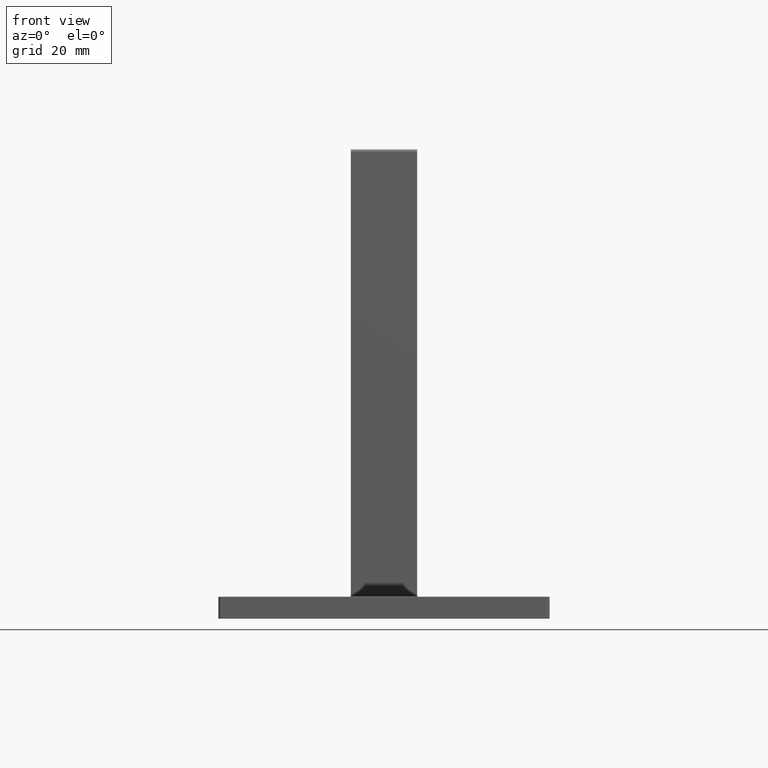
[diagram: clean part render]
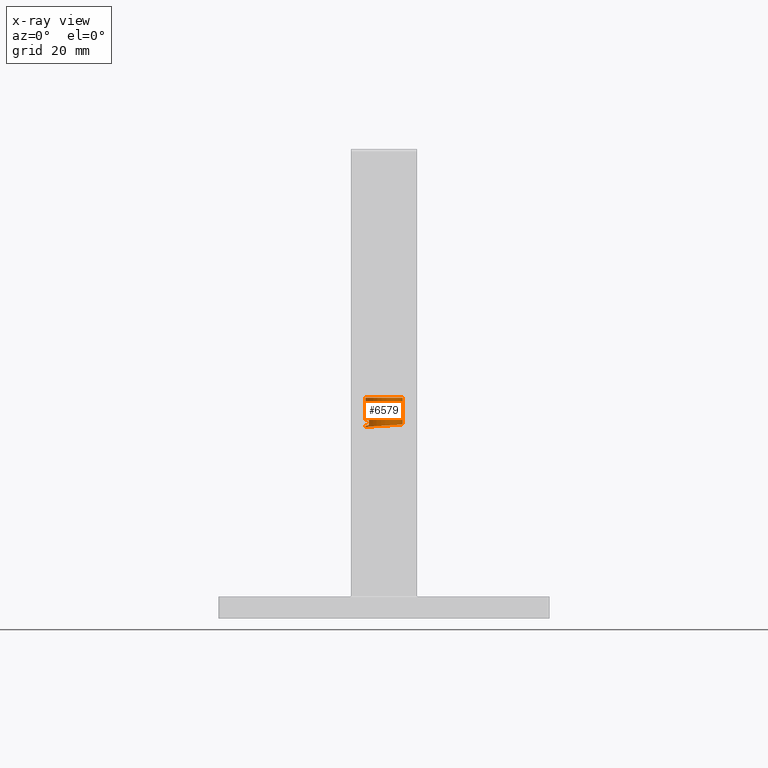
[diagram: x-ray — body ghosted, one internal face saturated and labeled with its STEP entity id]
A machine part, front view, then the same camera in x-ray: the body is ghosted and one INTERNAL B-rep face — a face not visible from any outside direction — is saturated and labeled: STEP entity #6579.
In plain terms, the highlighted cylindrical surface (edge-blend (fillet) strip) has radius 3.4 mm, axis along (-0, -0, -1).
Its self-contained STEP definition (entity closure, byte-faithful):
#4 = CARTESIAN_POINT ( 'NONE',  ( -3.399999999999991029, -1.455677376103873752E-12, 34.87500000000008527 ) ) ;
#101 = CARTESIAN_POINT ( 'NONE',  ( -3.330509360985941303, -0.7066616745555754919, 34.91579785932294300 ) ) ;
#214 = CARTESIAN_POINT ( 'NONE',  ( -3.399999999999991029, 4.163799117100990205E-16, 34.61804246300615517 ) ) ;
#374 = EDGE_CURVE ( 'NONE', #8273, #3691, #9939, .T. ) ;
#423 = VERTEX_POINT ( 'NONE', #5881 ) ;
#516 = ORIENTED_EDGE ( 'NONE', *, *, #3046, .T. ) ;
#715 = LINE ( 'NONE', #3040, #2293 ) ;
#773 = CARTESIAN_POINT ( 'NONE',  ( -3.399999999999991029, 4.163799117100990205E-16, 34.61804246300615517 ) ) ;
#840 = EDGE_CURVE ( 'NONE', #7944, #3091, #6462, .T. ) ;
#851 = CARTESIAN_POINT ( 'NONE',  ( -2.962326722042654126, -1.707130501633835173, 34.97975964176876573 ) ) ;
#965 = EDGE_CURVE ( 'NONE', #9539, #2554, #6467, .T. ) ;
#1092 = ORIENTED_EDGE ( 'NONE', *, *, #3662, .F. ) ;
#1162 = VERTEX_POINT ( 'NONE', #8162 ) ;
#1274 = AXIS2_PLACEMENT_3D ( 'NONE', #8583, #2276, #1588 ) ;
#1509 = DIRECTION ( 'NONE',  ( -0.000000000000000000, -0.000000000000000000, -1.000000000000000000 ) ) ;
#1588 = DIRECTION ( 'NONE',  ( -1.000000000000000000, 0.000000000000000000, 0.000000000000000000 ) ) ;
#1645 = LINE ( 'NONE', #3398, #3726 ) ;
#1660 = CARTESIAN_POINT ( 'NONE',  ( -2.750664475764498906, -1.998460642939448251, 35.00078231416105723 ) ) ;
#1766 = CARTESIAN_POINT ( 'NONE',  ( 3.399999999999961275, -1.408326112068550406, 35.16491746300615517 ) ) ;
#1770 = ORIENTED_EDGE ( 'NONE', *, *, #965, .F. ) ;
#2060 = EDGE_LOOP ( 'NONE', ( #7138, #516, #5027, #9220, #5401, #10067, #1770, #1092 ) ) ;
#2276 = DIRECTION ( 'NONE',  ( -0.000000000000000000, -0.000000000000000000, -1.000000000000000000 ) ) ;
#2293 = VECTOR ( 'NONE', #3132, 1000.000000000000000 ) ;
#2406 = CARTESIAN_POINT ( 'NONE',  ( -3.399999999999991029, 4.163799117100990205E-16, 35.86804246300615517 ) ) ;
#2473 = CARTESIAN_POINT ( 'NONE',  ( -2.750672378634997362, -1.998449765495452057, 35.99382399216391804 ) ) ;
#2554 = VERTEX_POINT ( 'NONE', #3856 ) ;
#2947 = DIRECTION ( 'NONE',  ( -0.000000000000000000, -0.000000000000000000, -1.000000000000000000 ) ) ;
#3040 = CARTESIAN_POINT ( 'NONE',  ( -2.750677244555317369, -1.998443068062111916, 35.00078231416105723 ) ) ;
#3046 = EDGE_CURVE ( 'NONE', #423, #3691, #7700, .T. ) ;
#3091 = VERTEX_POINT ( 'NONE', #4400 ) ;
#3099 = VECTOR ( 'NONE', #2947, 1000.000000000000000 ) ;
#3132 = DIRECTION ( 'NONE',  ( 0.000000000000000000, 0.000000000000000000, 1.000000000000000000 ) ) ;
#3195 = CARTESIAN_POINT ( 'NONE',  ( -3.399999999999991029, 4.163799117100990205E-16, 35.86804246300615517 ) ) ;
#3263 = CARTESIAN_POINT ( 'NONE',  ( 1.408326112068520430, -3.399999999999990585, 35.00866746300616228 ) ) ;
#3330 = CARTESIAN_POINT ( 'NONE',  ( 2.404163056034255064, -2.404163056034255952, 35.08679246300616228 ) ) ;
#3398 = CARTESIAN_POINT ( 'NONE',  ( -3.399999999999991029, 0.000000000000000000, 0.000000000000000000 ) ) ;
#3662 = EDGE_CURVE ( 'NONE', #1162, #9539, #1645, .T. ) ;
#3691 = VERTEX_POINT ( 'NONE', #8008 ) ;
#3726 = VECTOR ( 'NONE', #9532, 1000.000000000000000 ) ;
#3856 = CARTESIAN_POINT ( 'NONE',  ( -2.750672378634997362, -1.998449765495452057, 35.99382399216391804 ) ) ;
#3981 = EDGE_CURVE ( 'NONE', #423, #1162, #7838, .T. ) ;
#3995 = FACE_OUTER_BOUND ( 'NONE', #2060, .T. ) ;
#4400 = CARTESIAN_POINT ( 'NONE',  ( -2.750664475764498906, -1.998460642939448251, 35.00078231416105723 ) ) ;
#4873 = DIRECTION ( 'NONE',  ( -0.000000000000000000, -0.000000000000000000, -1.000000000000000000 ) ) ;
#5027 = ORIENTED_EDGE ( 'NONE', *, *, #374, .F. ) ;
#5072 = CARTESIAN_POINT ( 'NONE',  ( 3.399999999999991029, 0.000000000000000000, 35.24304246300615517 ) ) ;
#5098 = CARTESIAN_POINT ( 'NONE',  ( -3.400000000000020339, -1.408326112068490676, 34.69616746300615517 ) ) ;
#5355 = DIRECTION ( 'NONE',  ( -1.000000000000000000, 0.000000000000000000, 0.000000000000000000 ) ) ;
#5401 = ORIENTED_EDGE ( 'NONE', *, *, #840, .T. ) ;
#5449 = AXIS2_PLACEMENT_3D ( 'NONE', #6870, #1509, #5355 ) ;
#5540 = CARTESIAN_POINT ( 'NONE',  ( -3.399999999999991918, -1.104708662355187387, 35.92932469267364581 ) ) ;
#5584 = CARTESIAN_POINT ( 'NONE',  ( -2.404163056034255952, -2.404163056034255064, 34.77429246300616228 ) ) ;
#5711 = EDGE_CURVE ( 'NONE', #3091, #2554, #715, .T. ) ;
#5881 = CARTESIAN_POINT ( 'NONE',  ( 3.399999999999992362, 4.163799117100991685E-16, 40.00000000000000000 ) ) ;
#6260 = CARTESIAN_POINT ( 'NONE',  ( -3.386079830982932748, -0.3551432163385366270, 34.89502094987331304 ) ) ;
#6357 = CARTESIAN_POINT ( 'NONE',  ( -3.288236529716412004, -0.8827835041746439071, 34.92653932395912619 ) ) ;
#6365 = CARTESIAN_POINT ( 'NONE',  ( -6.245698675651484076E-16, -3.399999999999991029, 34.93054246300615517 ) ) ;
#6395 = VECTOR ( 'NONE', #4873, 1000.000000000000000 ) ;
#6462 = B_SPLINE_CURVE_WITH_KNOTS ( 'NONE', 3,
 ( #4, #8590, #6260, #101, #6357, #9329, #851, #1660 ),
 .UNSPECIFIED., .F., .F.,
 ( 4, 2, 2, 4 ),
 ( 0.5764650741618864149, 0.5769984646712792431, 0.5775318551806720713, 0.5785986361994578386 ),
 .UNSPECIFIED. ) ;
#6467 =( BOUNDED_CURVE ( )  B_SPLINE_CURVE ( 2, ( #3195, #5540, #2473 ),
 .UNSPECIFIED., .F., .F. ) 
 B_SPLINE_CURVE_WITH_KNOTS ( ( 3, 3 ),
 ( 0.9833333333333332815, 0.9866562500330663399 ),
 .UNSPECIFIED. ) 
 CURVE ( )  GEOMETRIC_REPRESENTATION_ITEM ( )  RATIONAL_B_SPLINE_CURVE ( ( 1.000000000000000000, 0.9392939265736656163, 0.9754140412258511805 ) ) 
 REPRESENTATION_ITEM ( '' )  );
#6579 = ADVANCED_FACE ( 'NONE', ( #3995 ), #8116, .F. ) ;
#6792 = CARTESIAN_POINT ( 'NONE',  ( 3.399999999999991029, 4.163799117100990205E-16, 0.000000000000000000 ) ) ;
#6870 = CARTESIAN_POINT ( 'NONE',  ( 0.000000000000000000, 0.000000000000000000, 40.00000000000000000 ) ) ;
#7101 = EDGE_CURVE ( 'NONE', #7944, #8273, #8191, .T. ) ;
#7138 = ORIENTED_EDGE ( 'NONE', *, *, #3981, .F. ) ;
#7156 = CARTESIAN_POINT ( 'NONE',  ( -1.408326112068521763, -3.399999999999990141, 34.85241746300615517 ) ) ;
#7296 = CARTESIAN_POINT ( 'NONE',  ( -3.399999999999991029, 0.000000000000000000, 0.000000000000000000 ) ) ;
#7700 = LINE ( 'NONE', #6792, #3099 ) ;
#7838 = CIRCLE ( 'NONE', #5449, 3.399999999999992362 ) ;
#7944 = VERTEX_POINT ( 'NONE', #9485 ) ;
#8008 = CARTESIAN_POINT ( 'NONE',  ( 3.399999999999991029, 0.000000000000000000, 35.24304246300615517 ) ) ;
#8116 = CYLINDRICAL_SURFACE ( 'NONE', #1274, 3.399999999999991029 ) ;
#8162 = CARTESIAN_POINT ( 'NONE',  ( -3.399999999999992362, 0.000000000000000000, 40.00000000000000000 ) ) ;
#8191 = LINE ( 'NONE', #7296, #6395 ) ;
#8273 = VERTEX_POINT ( 'NONE', #773 ) ;
#8583 = CARTESIAN_POINT ( 'NONE',  ( 0.000000000000000000, 0.000000000000000000, 0.000000000000000000 ) ) ;
#8590 = CARTESIAN_POINT ( 'NONE',  ( -3.399999999999919087, -0.1781773330325500948, 34.88488414829767947 ) ) ;
#9220 = ORIENTED_EDGE ( 'NONE', *, *, #7101, .F. ) ;
#9329 = CARTESIAN_POINT ( 'NONE',  ( -3.122634366106712189, -1.391538493188994030, 34.95856702060466148 ) ) ;
#9485 = CARTESIAN_POINT ( 'NONE',  ( -3.399999999999991029, -1.455677376103873752E-12, 34.87500000000008527 ) ) ;
#9532 = DIRECTION ( 'NONE',  ( -0.000000000000000000, -0.000000000000000000, -1.000000000000000000 ) ) ;
#9539 = VERTEX_POINT ( 'NONE', #2406 ) ;
#9939 =( BOUNDED_CURVE ( )  B_SPLINE_CURVE ( 2, ( #214, #5098, #5584, #7156, #6365, #3263, #3330, #1766, #5072 ),
 .UNSPECIFIED., .F., .T. ) 
 B_SPLINE_CURVE_WITH_KNOTS ( ( 3, 2, 2, 2, 3 ),
 ( 0.9499999999999998446, 0.9541666666666666075, 0.9583333333333332593, 0.9624999999999999112, 0.9666666666666665630 ),
 .UNSPECIFIED. ) 
 CURVE ( )  GEOMETRIC_REPRESENTATION_ITEM ( )  RATIONAL_B_SPLINE_CURVE ( ( 1.000000000000001998, 0.9238795325112847401, 1.000000000000000000, 0.9238795325112867385, 1.000000000000000000, 0.9238795325112867385, 1.000000000000000000, 0.9238795325112887369, 0.9999999999999980016 ) ) 
 REPRESENTATION_ITEM ( '' )  );
#10067 = ORIENTED_EDGE ( 'NONE', *, *, #5711, .T. ) ;